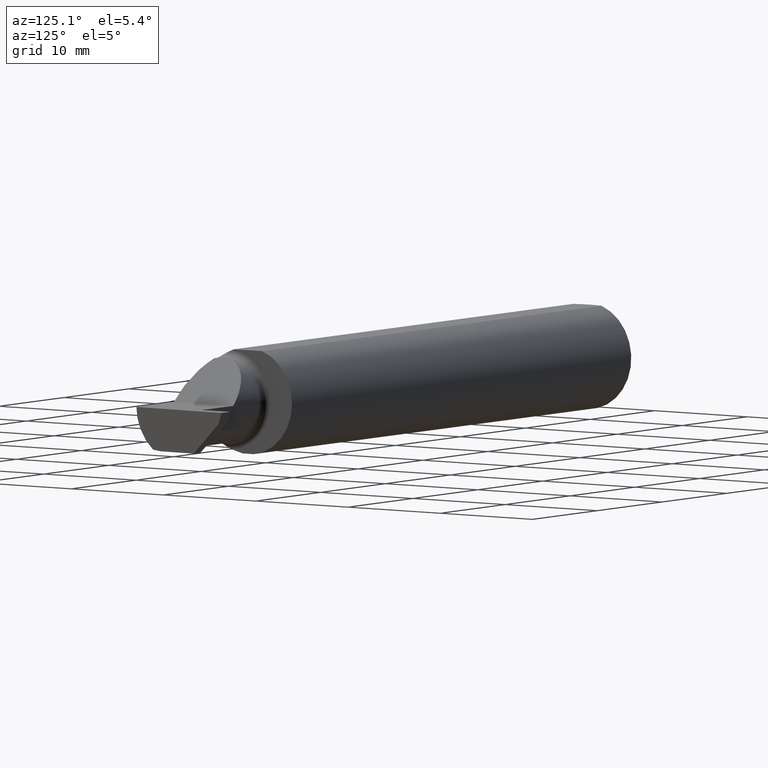
[diagram: clean part render]
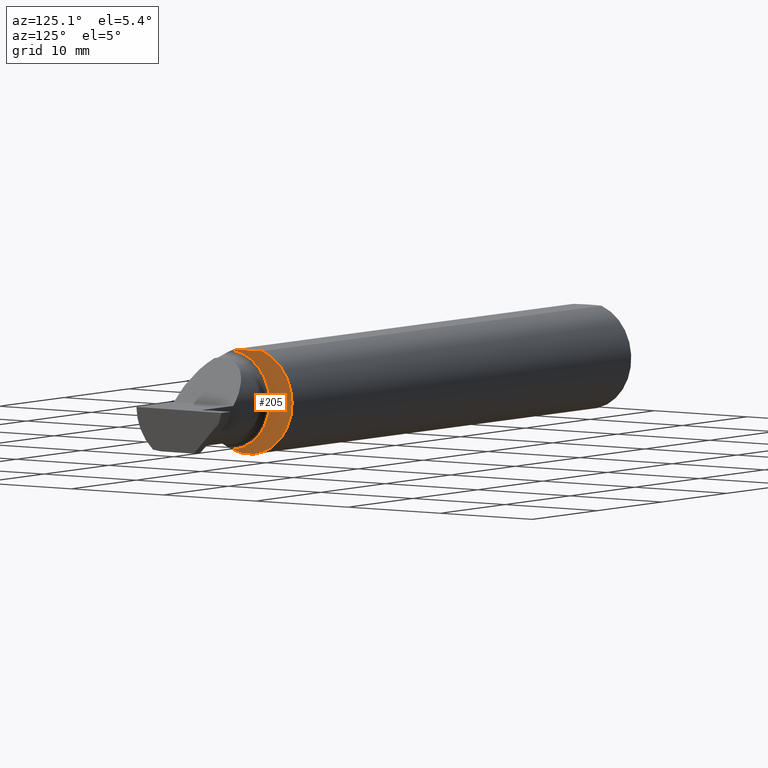
[diagram: same view with one face highlighted and labeled with its STEP entity id]
A machine part, auxiliary view. The second image highlights one B-rep face of the part: STEP entity #205.
In plain terms, the highlighted planar face has unit normal (1, 0, 0).
Its self-contained STEP definition (entity closure, byte-faithful):
#6 = ORIENTED_EDGE ( 'NONE', *, *, #528, .F. ) ;
#16 = CARTESIAN_POINT ( 'NONE',  ( 2.075000000000000178, 0.2666500000000000536, 0.000000000000000000 ) ) ;
#20 = CARTESIAN_POINT ( 'NONE',  ( 2.075000000000000178, -0.1873500000000000165, 0.1773499999999999799 ) ) ;
#28 = EDGE_CURVE ( 'NONE', #172, #521, #196, .T. ) ;
#79 = EDGE_CURVE ( 'NONE', #356, #862, #449, .T. ) ;
#82 = DIRECTION ( 'NONE',  ( 0.000000000000000000, 0.000000000000000000, 1.000000000000000000 ) ) ;
#111 = DIRECTION ( 'NONE',  ( -0.000000000000000000, 1.000000000000000000, 0.000000000000000000 ) ) ;
#128 = ORIENTED_EDGE ( 'NONE', *, *, #28, .T. ) ;
#134 = DIRECTION ( 'NONE',  ( 1.000000000000000000, 0.000000000000000000, 0.000000000000000000 ) ) ;
#151 = CARTESIAN_POINT ( 'NONE',  ( 2.075000000000000178, -0.06039039658753699025, 0.1773499999999999799 ) ) ;
#161 = DIRECTION ( 'NONE',  ( -1.000000000000000000, -0.000000000000000000, -0.000000000000000000 ) ) ;
#172 = VERTEX_POINT ( 'NONE', #151 ) ;
#191 = DIRECTION ( 'NONE',  ( 1.000000000000000000, 0.000000000000000000, 0.000000000000000000 ) ) ;
#196 = CIRCLE ( 'NONE', #564, 0.1873499999999999888 ) ;
#205 = ADVANCED_FACE ( 'NONE', ( #733 ), #278, .T. ) ;
#220 = CARTESIAN_POINT ( 'NONE',  ( 2.075000000000000178, -0.06851976604679065053, -0.1743704796142198643 ) ) ;
#278 = PLANE ( 'NONE',  #792 ) ;
#301 = CARTESIAN_POINT ( 'NONE',  ( 2.075000000000000178, 0.000000000000000000, 0.000000000000000000 ) ) ;
#336 = ORIENTED_EDGE ( 'NONE', *, *, #79, .T. ) ;
#352 = ORIENTED_EDGE ( 'NONE', *, *, #621, .T. ) ;
#356 = VERTEX_POINT ( 'NONE', #220 ) ;
#429 = LINE ( 'NONE', #20, #479 ) ;
#449 = CIRCLE ( 'NONE', #688, 0.1873499999999999888 ) ;
#466 = DIRECTION ( 'NONE',  ( 0.000000000000000000, 0.000000000000000000, -1.000000000000000000 ) ) ;
#479 = VECTOR ( 'NONE', #111, 39.37007874015748143 ) ;
#516 = EDGE_LOOP ( 'NONE', ( #336, #6, #128, #352 ) ) ;
#521 = VERTEX_POINT ( 'NONE', #826 ) ;
#528 = EDGE_CURVE ( 'NONE', #172, #862, #429, .T. ) ;
#564 = AXIS2_PLACEMENT_3D ( 'NONE', #301, #623, #466 ) ;
#582 = DIRECTION ( 'NONE',  ( 0.000000000000000000, 0.000000000000000000, -1.000000000000000000 ) ) ;
#621 = EDGE_CURVE ( 'NONE', #521, #356, #647, .T. ) ;
#623 = DIRECTION ( 'NONE',  ( 1.000000000000000000, 0.000000000000000000, 0.000000000000000000 ) ) ;
#628 = CARTESIAN_POINT ( 'NONE',  ( 2.075000000000000178, 0.000000000000000000, 0.000000000000000000 ) ) ;
#646 = CARTESIAN_POINT ( 'NONE',  ( 2.075000000000000178, -0.08334999999999996578, 0.000000000000000000 ) ) ;
#647 = CIRCLE ( 'NONE', #811, 0.1749999999999999889 ) ;
#688 = AXIS2_PLACEMENT_3D ( 'NONE', #628, #134, #1003 ) ;
#698 = CARTESIAN_POINT ( 'NONE',  ( 2.075000000000000178, 0.06039039658754216666, 0.1773499999999999799 ) ) ;
#733 = FACE_OUTER_BOUND ( 'NONE', #516, .T. ) ;
#792 = AXIS2_PLACEMENT_3D ( 'NONE', #16, #191, #582 ) ;
#811 = AXIS2_PLACEMENT_3D ( 'NONE', #646, #161, #82 ) ;
#826 = CARTESIAN_POINT ( 'NONE',  ( 2.075000000000000178, -0.06851976604679065053, 0.1743704796142198643 ) ) ;
#862 = VERTEX_POINT ( 'NONE', #698 ) ;
#1003 = DIRECTION ( 'NONE',  ( 0.000000000000000000, 0.000000000000000000, -1.000000000000000000 ) ) ;